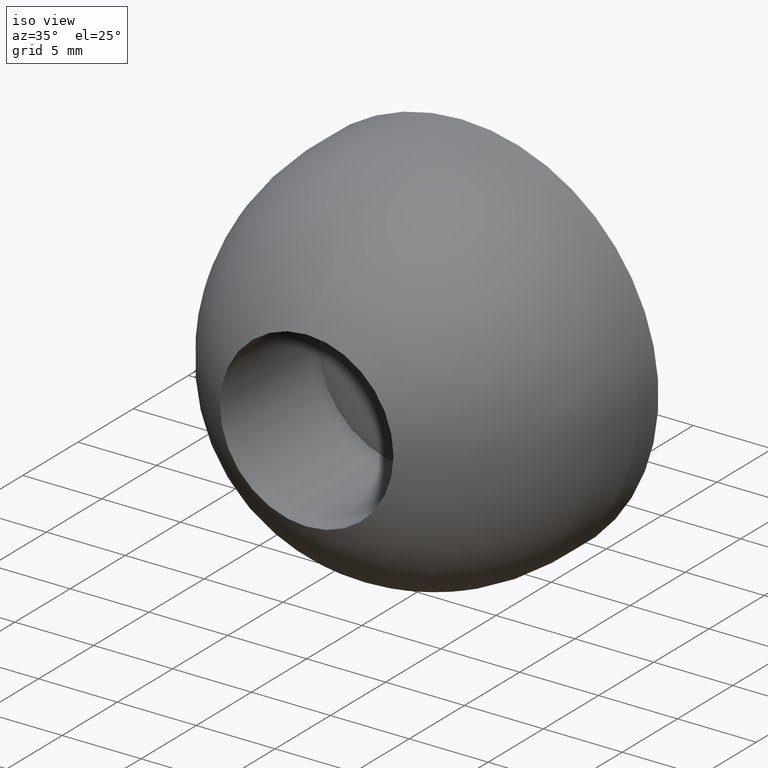
[diagram: clean part render]
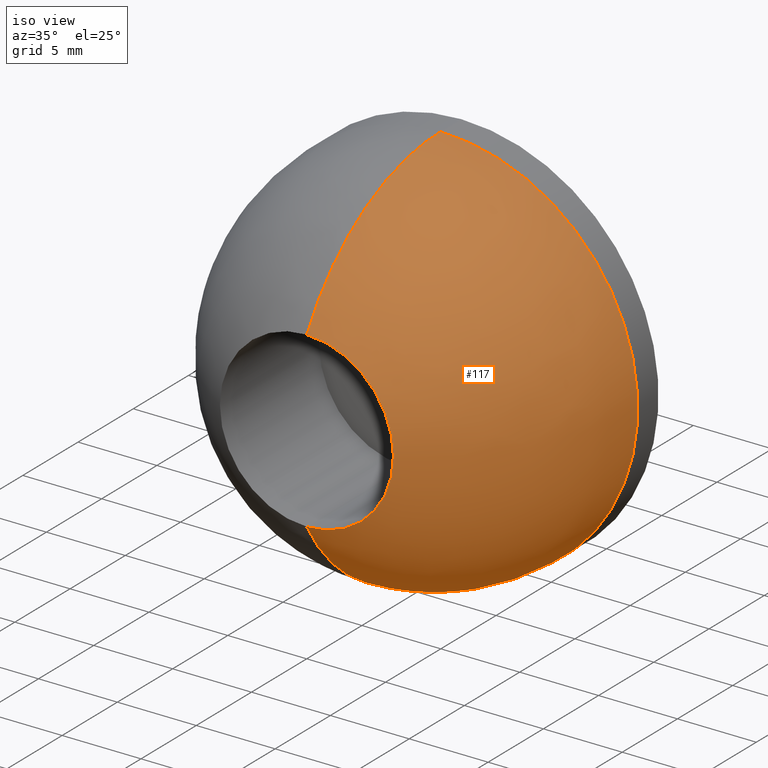
[diagram: same view with one face highlighted and labeled with its STEP entity id]
A machine part, iso view. The second image highlights one B-rep face of the part: STEP entity #117.
In plain terms, the highlighted face is a freeform B-spline surface patch.
Its self-contained STEP definition (entity closure, byte-faithful):
#117=ADVANCED_FACE('',(#185),#184,.T.);
#184=( BOUNDED_SURFACE() B_SPLINE_SURFACE( 2,2,((#354,#355,#356,#357,#358),(#359,#360,#361,#362,#363),(#364,#365,#366,#367,#368)), .UNSPECIFIED.,.F.,.F.,.F.) B_SPLINE_SURFACE_WITH_KNOTS((3,3),(3,2,3),(-1.04719755120E+000,0.00000000000E+000),(0.00000000000E+000,1.57079632679E+000,3.14159265359E+000), .UNSPECIFIED. ) GEOMETRIC_REPRESENTATION_ITEM() RATIONAL_B_SPLINE_SURFACE(((1.00000000000E+000,7.07106781187E-001,1.00000000000E+000,7.07106781187E-001,1.00000000000E+000),(8.66025403784E-001,6.12372435696E-001,8.66025403784E-001,6.12372435696E-001,8.66025403784E-001),(1.00000000000E+000,7.07106781187E-001,1.00000000000E+000,7.07106781187E-001,1.00000000000E+000))) REPRESENTATION_ITEM('') SURFACE() );
#185=FACE_OUTER_BOUND('',#369,.T.);
#354=CARTESIAN_POINT('',(2.30627420373E-015,5.15143483426E-014,-5.49999999999E+000));
#355=CARTESIAN_POINT('',(5.49999999999E+000,5.15143483426E-014,-5.49999999999E+000));
#356=CARTESIAN_POINT('',(5.49999999999E+000,5.15143483426E-014,-1.06118998138E-015));
#357=CARTESIAN_POINT('',(5.49999999999E+000,5.15143483426E-014,5.49999999999E+000));
#358=CARTESIAN_POINT('',(9.59207214527E-016,5.15143483426E-014,5.49999999999E+000));
#359=CARTESIAN_POINT('',(3.16349865141E-015,4.04145188433E+000,-1.25000000000E+001));
#360=CARTESIAN_POINT('',(1.25000000000E+001,4.04145188433E+000,-1.25000000000E+001));
#361=CARTESIAN_POINT('',(1.25000000000E+001,4.04145188433E+000,-2.03965533698E-016));
#362=CARTESIAN_POINT('',(1.25000000000E+001,4.04145188433E+000,1.25000000000E+001));
#363=CARTESIAN_POINT('',(1.01982766850E-016,4.04145188433E+000,1.25000000000E+001));
#364=CARTESIAN_POINT('',(3.16349865141E-015,1.21243556530E+001,-1.25000000000E+001));
#365=CARTESIAN_POINT('',(1.25000000000E+001,1.21243556530E+001,-1.25000000000E+001));
#366=CARTESIAN_POINT('',(1.25000000000E+001,1.21243556530E+001,-2.03965533698E-016));
#367=CARTESIAN_POINT('',(1.25000000000E+001,1.21243556530E+001,1.25000000000E+001));
#368=CARTESIAN_POINT('',(1.01982766850E-016,1.21243556530E+001,1.25000000000E+001));
#369=EDGE_LOOP('',(#468,#469,#470,#471));
#468=ORIENTED_EDGE('',*,*,#540,.F.);
#469=ORIENTED_EDGE('',*,*,#541,.T.);
#470=ORIENTED_EDGE('',*,*,#539,.T.);
#471=ORIENTED_EDGE('',*,*,#542,.F.);
#539=EDGE_CURVE('',#647,#646,#666,.T.);
#540=EDGE_CURVE('',#672,#673,#674,.T.);
#541=EDGE_CURVE('',#672,#647,#680,.T.);
#542=EDGE_CURVE('',#673,#646,#686,.T.);
#646=VERTEX_POINT('',#874);
#647=VERTEX_POINT('',#875);
#666=CIRCLE('',#887,1.25000000000E+001);
#672=VERTEX_POINT('',#888);
#673=VERTEX_POINT('',#889);
#674=CIRCLE('',#893,5.50000000000E+000);
#680=(BOUNDED_CURVE() B_SPLINE_CURVE(2,(#894,#895,#896),.UNSPECIFIED.,.F.,.F.) B_SPLINE_CURVE_WITH_KNOTS((3,3),(-1.04719755120E+000,0.00000000000E+000),.UNSPECIFIED.) CURVE() GEOMETRIC_REPRESENTATION_ITEM() RATIONAL_B_SPLINE_CURVE((1.00000000000E+000,8.66025403784E-001,1.00000000000E+000)) REPRESENTATION_ITEM('') );
#686=(BOUNDED_CURVE() B_SPLINE_CURVE(2,(#897,#898,#899),.UNSPECIFIED.,.F.,.F.) B_SPLINE_CURVE_WITH_KNOTS((3,3),(-1.04719755120E+000,0.00000000000E+000),.UNSPECIFIED.) CURVE() GEOMETRIC_REPRESENTATION_ITEM() RATIONAL_B_SPLINE_CURVE((1.00000000000E+000,8.66025403784E-001,1.00000000000E+000)) REPRESENTATION_ITEM('') );
#874=CARTESIAN_POINT('',(1.53075794228E-015,1.21243556530E+001,1.25000000000E+001));
#875=CARTESIAN_POINT('',(5.92118946467E-016,1.21243556530E+001,-1.25000000000E+001));
#884=CARTESIAN_POINT('',(0.00000000000E+000,1.21243556530E+001,0.00000000000E+000));
#885=DIRECTION('',(0.00000000000E+000,-1.00000000000E+000,0.00000000000E+000));
#886=DIRECTION('',(-0.00000000000E+000,-0.00000000000E+000,1.00000000000E+000));
#887=AXIS2_PLACEMENT_3D('',#884,#885,#886);
#888=CARTESIAN_POINT('',(0.00000000000E+000,5.15143483426E-014,-5.50000000000E+000));
#889=CARTESIAN_POINT('',(6.73533494602E-016,5.15143483426E-014,5.50000000000E+000));
#890=CARTESIAN_POINT('',(0.00000000000E+000,5.15143483426E-014,0.00000000000E+000));
#891=DIRECTION('',(0.00000000000E+000,-1.00000000000E+000,0.00000000000E+000));
#892=DIRECTION('',(-0.00000000000E+000,-0.00000000000E+000,1.00000000000E+000));
#893=AXIS2_PLACEMENT_3D('',#890,#891,#892);
#894=CARTESIAN_POINT('',(2.30627420373E-015,5.15143483426E-014,-5.49999999999E+000));
#895=CARTESIAN_POINT('',(3.16349865141E-015,4.04145188433E+000,-1.25000000000E+001));
#896=CARTESIAN_POINT('',(3.16349865141E-015,1.21243556530E+001,-1.25000000000E+001));
#897=CARTESIAN_POINT('',(9.59207214527E-016,5.15143483426E-014,5.49999999999E+000));
#898=CARTESIAN_POINT('',(1.01982766850E-016,4.04145188433E+000,1.25000000000E+001));
#899=CARTESIAN_POINT('',(1.01982766850E-016,1.21243556530E+001,1.25000000000E+001));